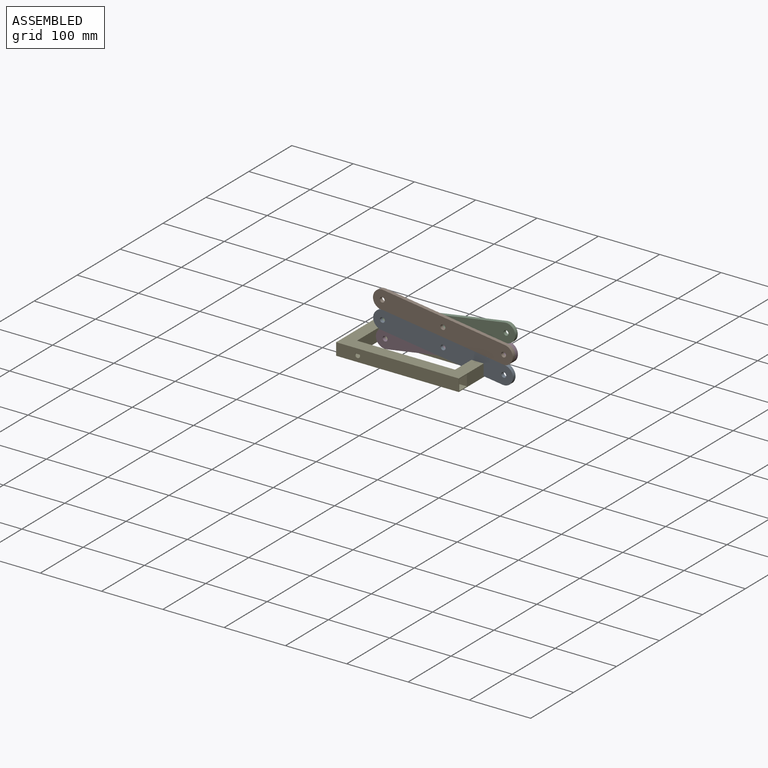
[diagram: assembled view]
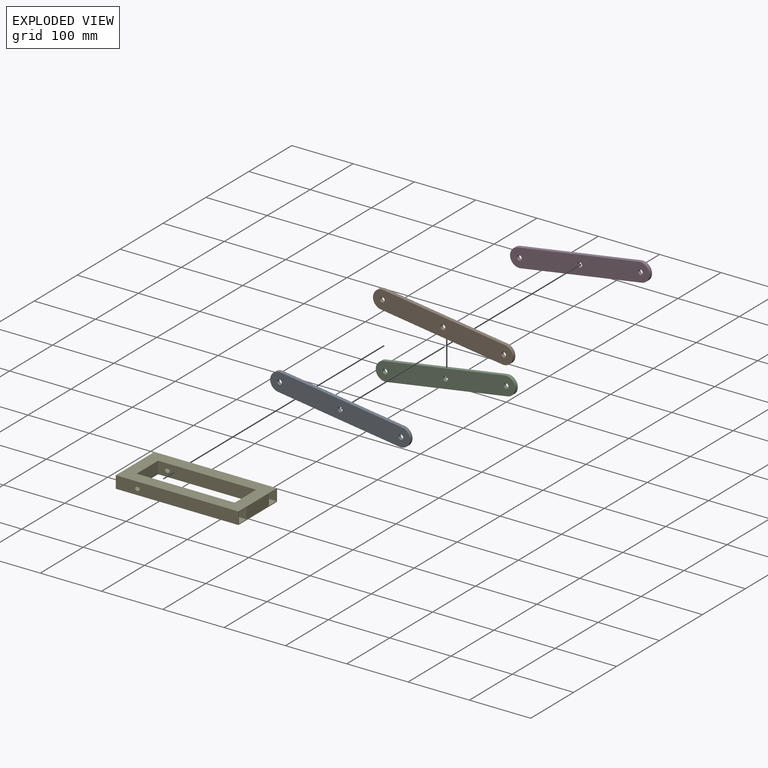
[diagram: exploded view]
GUIDED TOUR — MATED ASSEMBLY (Onshape document f0180cab8a7f78b1133b76b3, AutoMate assembly f0180cab8a7f78b1133b76b3_ec089f2cae63b6d1c7e616bc_10815a07de9a368d12c4ebc5_default)

This assembly has 5 components, labeled P0..P4 below (a component is one placed occurrence of a part; the same part can appear more than once), held together by 5 mates. A mate is a constraint between two components; its type names the relative motion it leaves free:
  REVOLUTE — leaves rotation about the listed axis free (a hinge).
Axis/direction vectors are unit vectors and 'through' points are millimeter coordinates, both in the assembly's world frame.

MATES
  1. REVOLUTE "Revolute 5": P1 <-> P2, axis (0.000, 1.000, 0.000) through (234.06, 152.56, 64.26) mm
  2. REVOLUTE "Revolute 4": P2 <-> P0, axis (0.000, -1.000, 0.000) through (135.31, 152.56, 48.47) mm
  3. REVOLUTE "Revolute 3": P1 <-> P3, axis (0.000, 1.000, 0.000) through (333.07, 152.56, 50.27) mm
  4. REVOLUTE "Revolute 1": P3 <-> P4, axis (0.000, 1.000, 0.000) through (135.58, 158.56, 18.69) mm
  5. REVOLUTE "Revolute 2": P0 <-> P3, axis (0.000, 1.000, 0.000) through (234.33, 152.56, 34.48) mm

ASSEMBLY ORDER
  1. P1 — the base component [order verified]
  2. P0 [order verified]
  3. P3 [order verified]
  4. P2 [order verified]
  5. P4 [order verified]
Order-tag legend:
  [order verified] — this step's position reverses a verified removal order: the component was checked to insert without passing through the ones already placed.

Of the 5 components, 5 carry the full construction recipe — the FeatureScript program that regenerates the part's solid from scratch; the rest are supplied as boundary geometry only.
Each toured component is shown spotlighted twice — in the assembled view, then in the exploded view, where a leader line traces a displaced component back to its assembled socket (saturated green if recipe-attached, orange if geometry-only; every other component desaturated gray) — followed by its recipe or geometry summary and the mates that hold it.
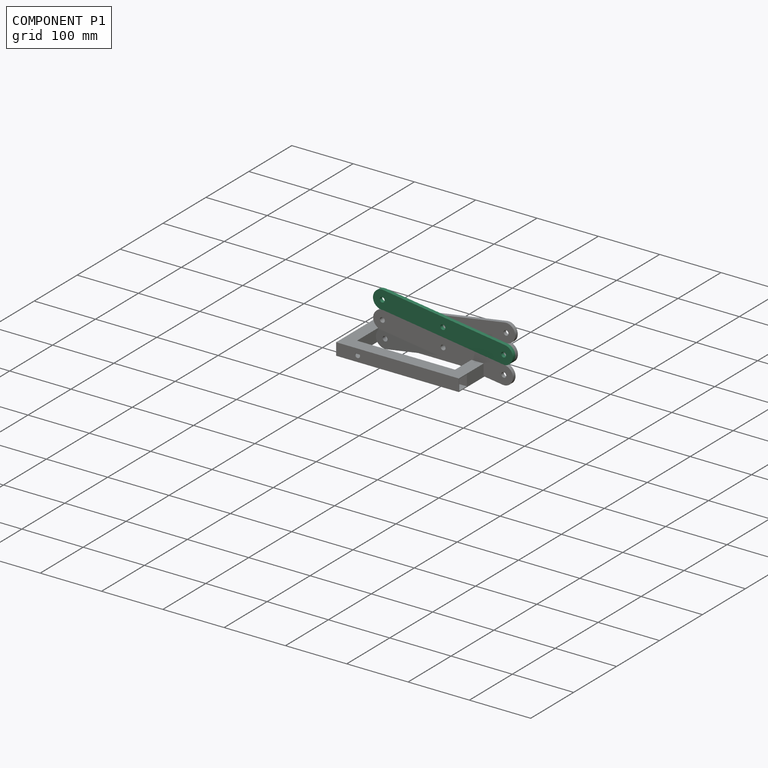
[diagram: component P1 — assembled]
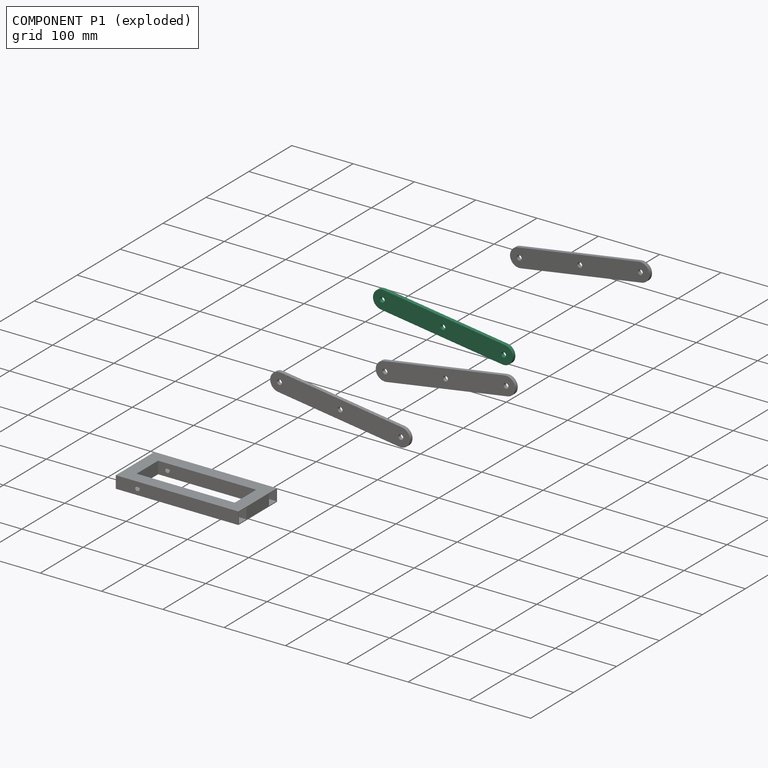
[diagram: component P1 — exploded]
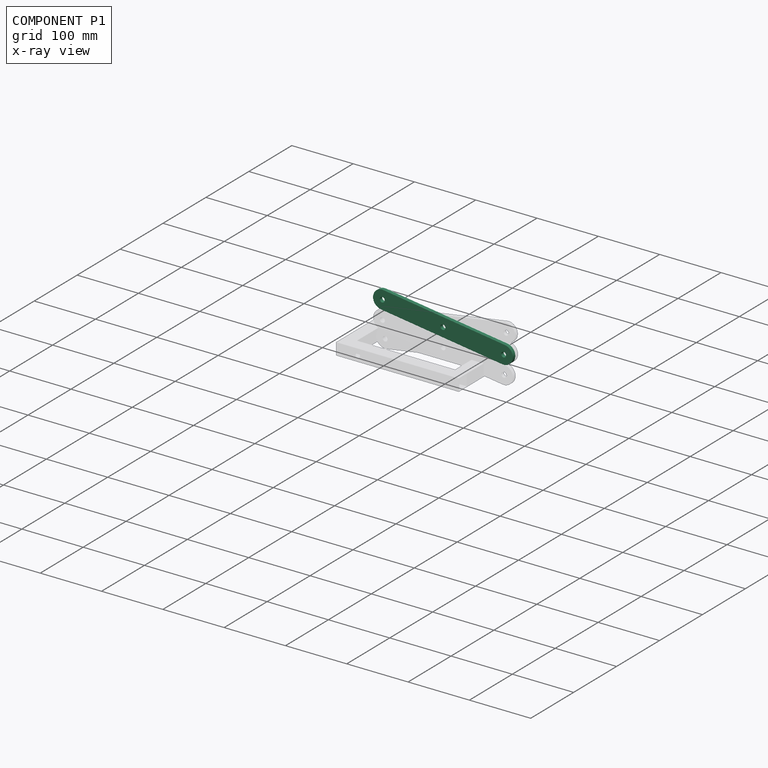
[diagram: component P1 — x-ray view]
COMPONENT P1 — same part as P0 (CADFS 00446103); its construction recipe is shown at P0.
Held by: REVOLUTE mate "Revolute 5" to P2; REVOLUTE mate "Revolute 3" to P3.
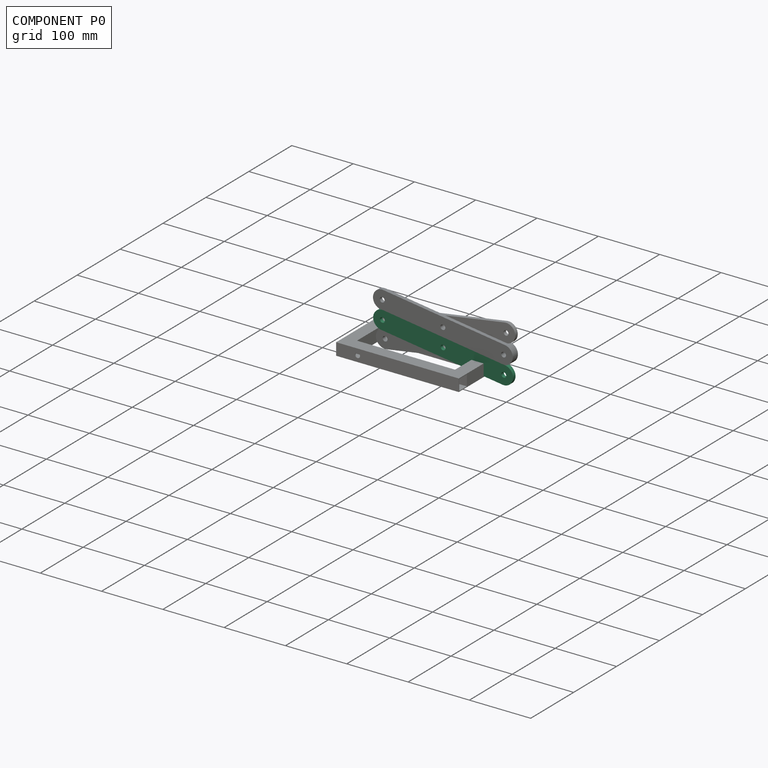
[diagram: component P0 — assembled]
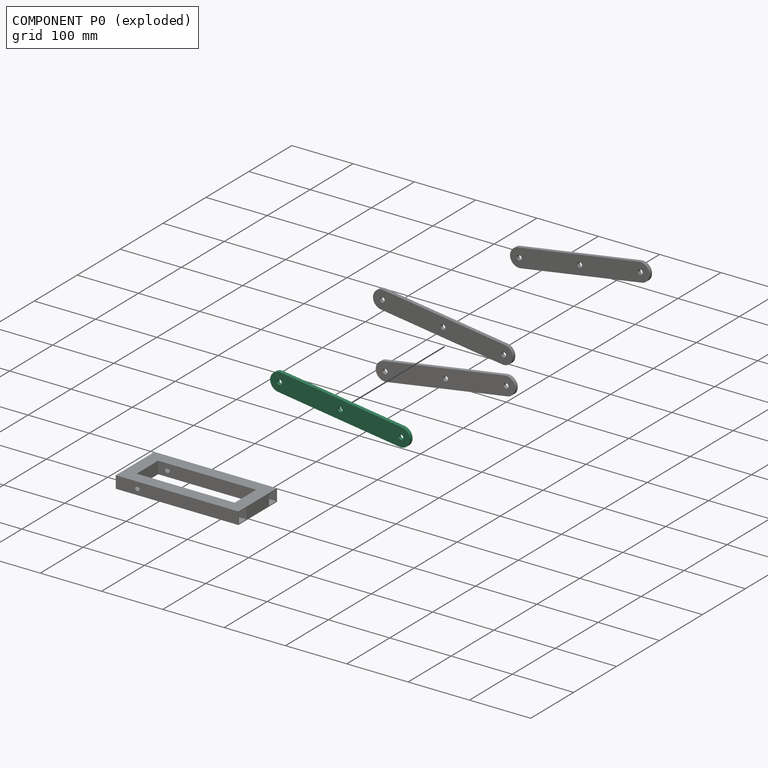
[diagram: component P0 — exploded]
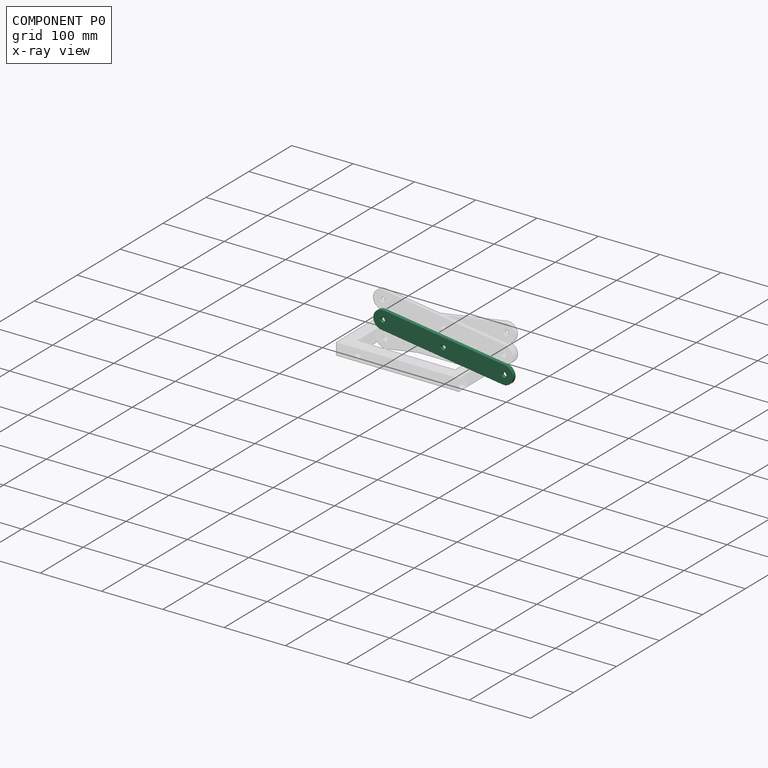
[diagram: component P0 — x-ray view]
COMPONENT P0 — recipe-attached (CADFS 00446103, mesh-verified: the recipe's output STEP matches this component's geometry to below the mesh-comparison resolution (tessellation chordal tolerance ~0.348 mm)).
Held by: REVOLUTE mate "Revolute 4" to P2; REVOLUTE mate "Revolute 2" to P3.
Construction recipe (FeatureScript — the CAD program that rebuilds this solid; sketch coordinates are in the units given by the * unit suffixes, e.g. mm):

FeatureScript 1511;
import(path : "onshape/std/geometry.fs", version : "1511.0");
import(path : "onshape/std/common.fs", version : "1511.0");
const mm = millimeter;
const VERTEX = EntityType.VERTEX;
const EDGE = EntityType.EDGE;
const FACE = EntityType.FACE;
const BODY = EntityType.BODY;
function v(x, y){return vector(x, y);}
function OD(order){return orderDisambiguation(order);}
function OSD(set){return originalSetDisambiguation(set);}
function TD(topology){return topologyDisambiguation(topology);}
function TDD(query){return trueDependencyDisambiguation(query);}
function sQuery(a, b, c) {return sketchEntityQuery(a, b, c);}

annotation { "Feature Type Name" : "Feature", "Feature Type Description" : "" }
export const myFeature = defineFeature(function(context is Context, id is Id, definition is map)
    precondition{}
    {
        {
            var Q0;
            Q0=qCreatedBy(makeId("Front.planeOp"),FACE);
            var sketch = newSketch(context, id + "F0", { "sketchPlane" : qUnion([Q0])});
            skLineSegment(sketch, "E0", {"start": v(0, 200) * mm, "end": v(0, 0) * mm});
            skLineSegment(sketch, "E1", {"start": v(30, 200) * mm, "end": v(30, 0) * mm});
            skArc(sketch, "E2", {"start": v(0, 200) * mm, "mid": v(15, 215) * mm, "end": v(30, 200) * mm});
            skArc(sketch, "E3", {"start": v(30, 0) * mm, "mid": v(15, -15) * mm, "end": v(0, 0) * mm});
            skCircle(sketch, "E4", {"center": v(15, 200) * mm, "radius": 4 * mm});
            skCircle(sketch, "E5", {"center": v(15, 0) * mm, "radius": 4 * mm});
            skCircle(sketch, "E6", {"center": v(15, 100) * mm, "radius": 4 * mm});
            skPoint(sketch, "E6.centerSnap0", {"position": v(0, 100) * mm});
            skLineSegment(sketch, "E7", {"start": v(0, 100) * mm, "end": v(30, 100) * mm, "construction": true});
            skSolve(sketch);
        }
        {
            var Q0;
            Q0 = qSketchRegion(id + "F0", true);
            extrude(context, id + "F1", {"entities" : qUnion([Q0]), "depth" : 6 * mm});
        }
    });
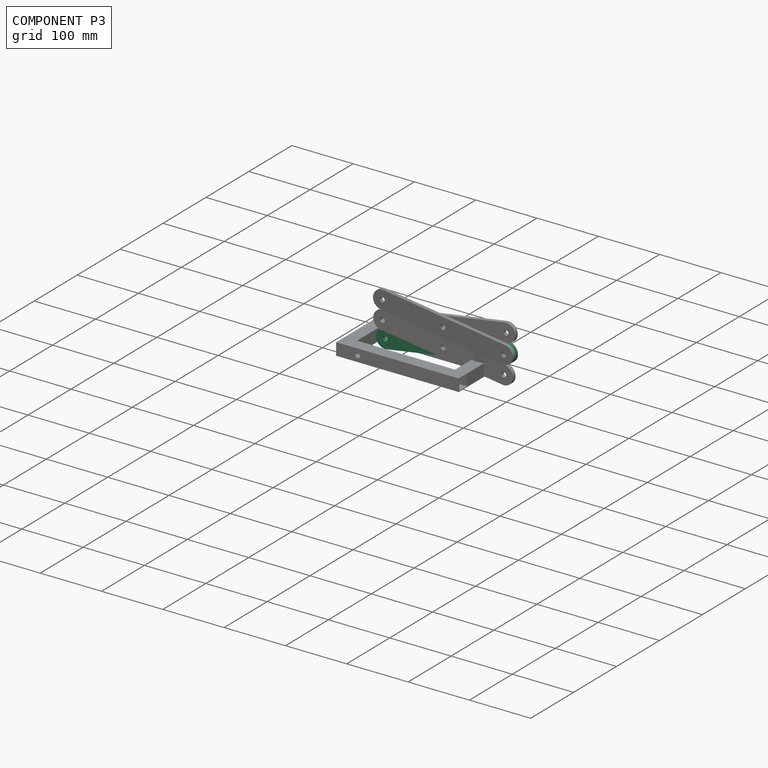
[diagram: component P3 — assembled]
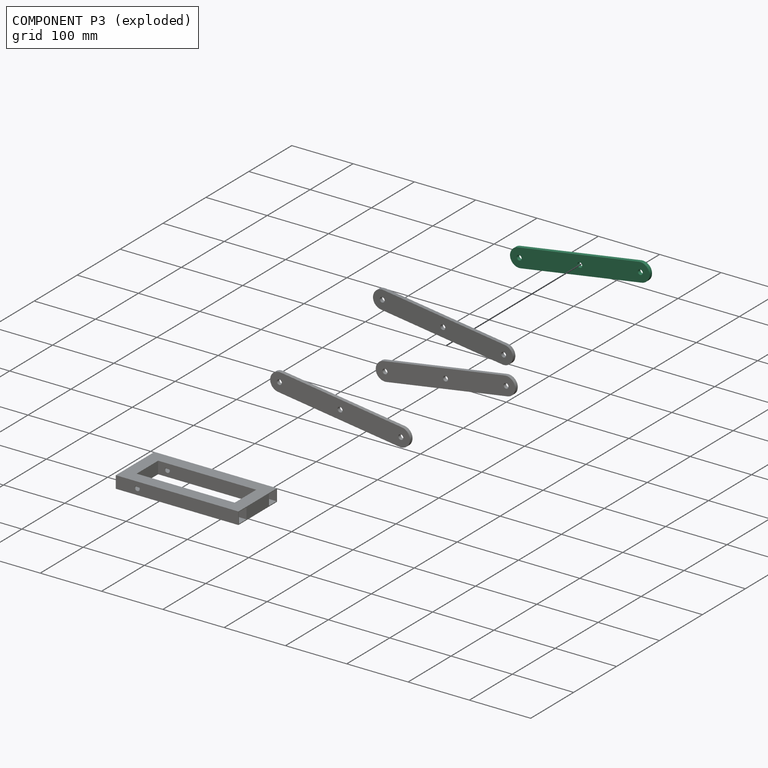
[diagram: component P3 — exploded]
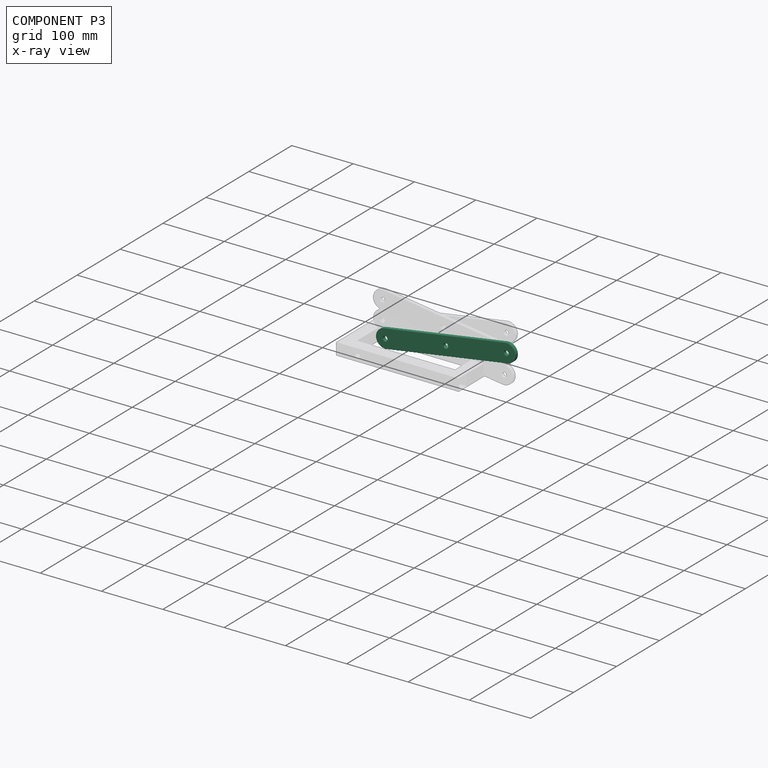
[diagram: component P3 — x-ray view]
COMPONENT P3 — same part as P0 (CADFS 00446103); its construction recipe is shown at P0.
Held by: REVOLUTE mate "Revolute 3" to P1; REVOLUTE mate "Revolute 1" to P4; REVOLUTE mate "Revolute 2" to P0.
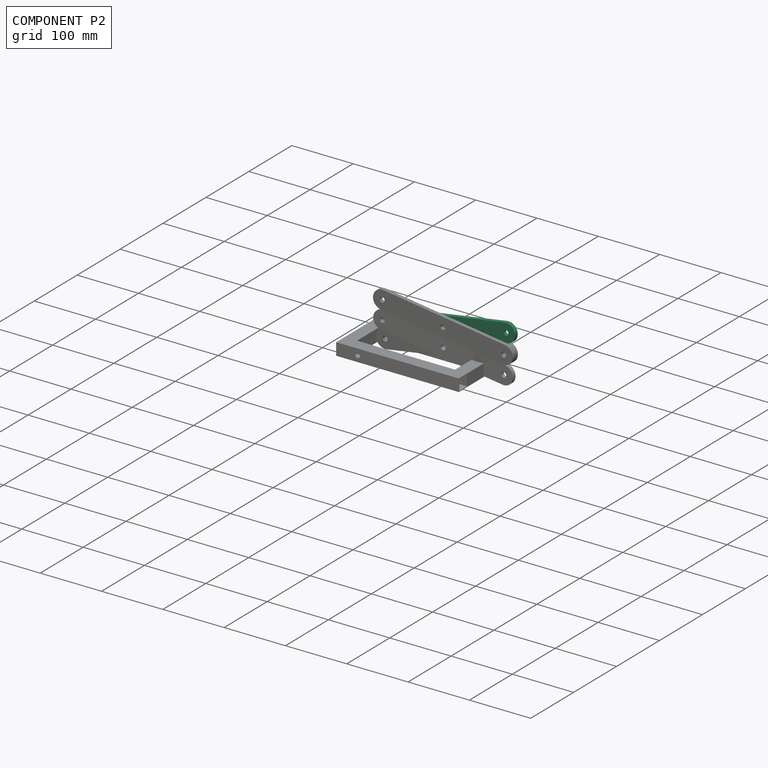
[diagram: component P2 — assembled]
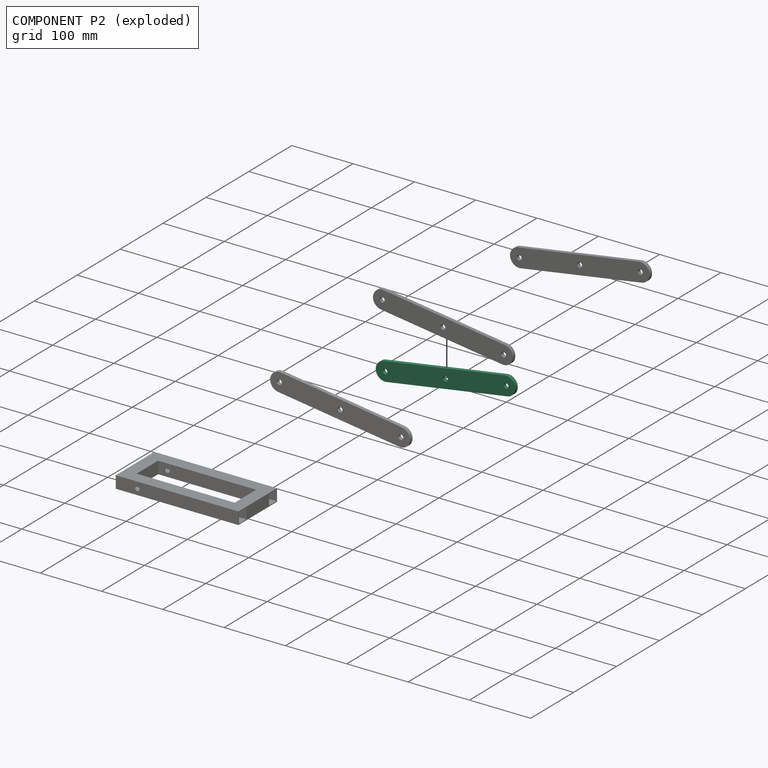
[diagram: component P2 — exploded]
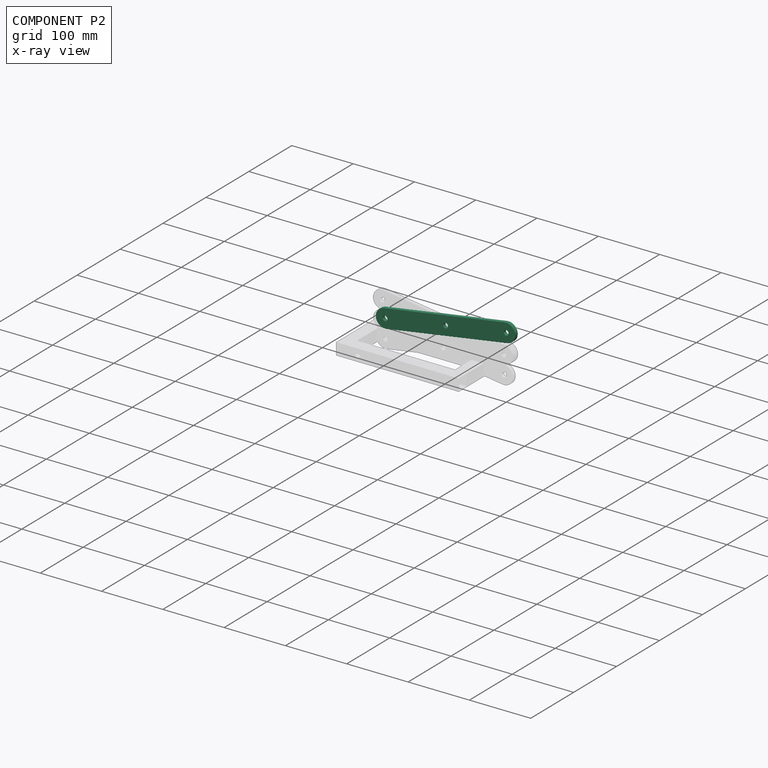
[diagram: component P2 — x-ray view]
COMPONENT P2 — same part as P0 (CADFS 00446103); its construction recipe is shown at P0.
Held by: REVOLUTE mate "Revolute 5" to P1; REVOLUTE mate "Revolute 4" to P0.
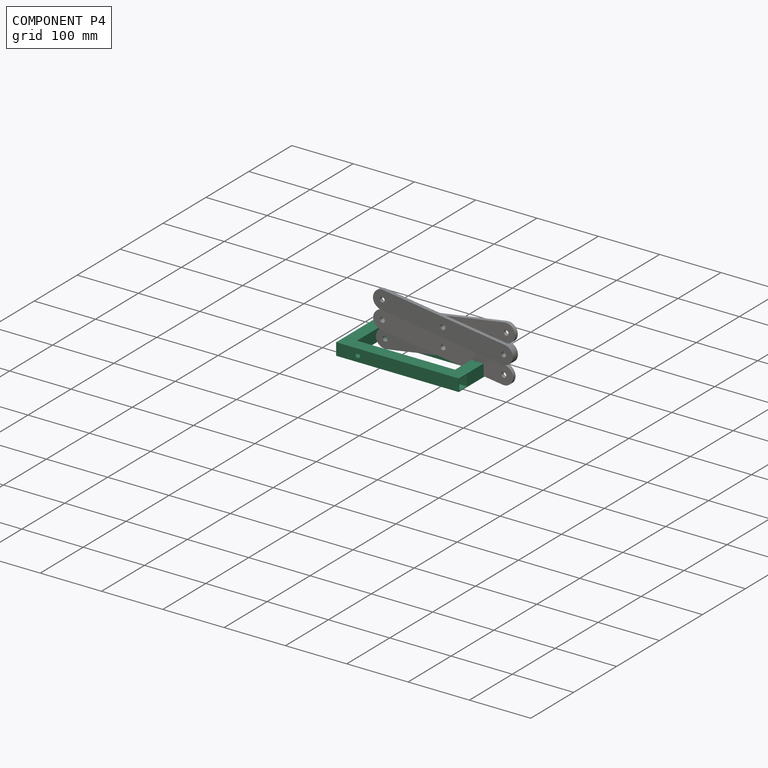
[diagram: component P4 — assembled]
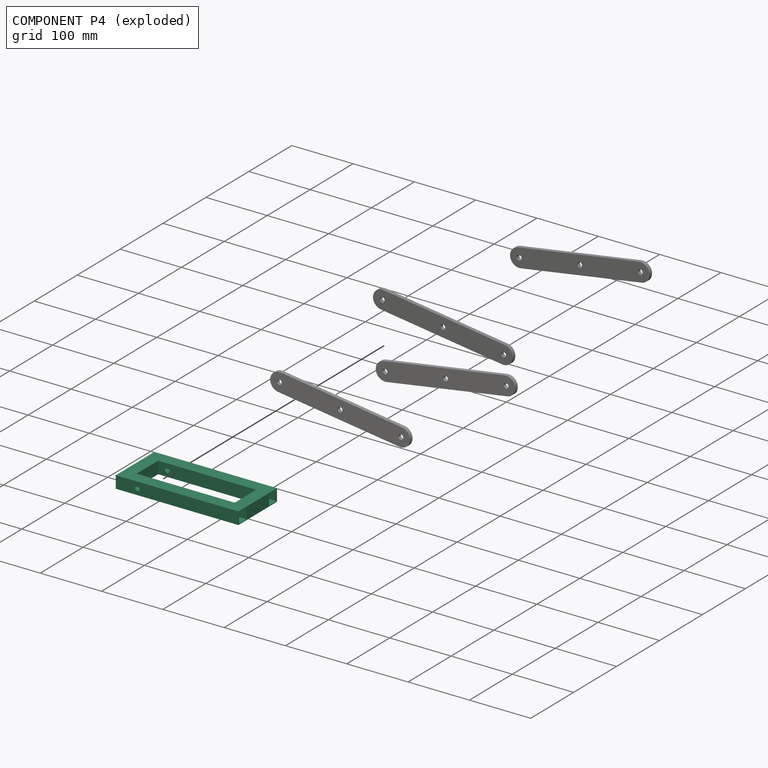
[diagram: component P4 — exploded]
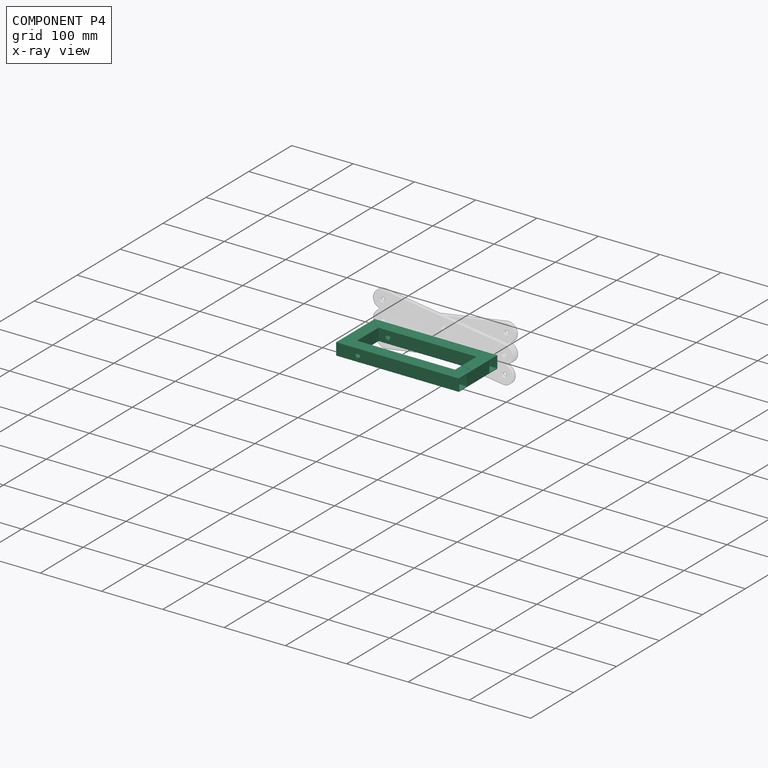
[diagram: component P4 — x-ray view]
COMPONENT P4 — recipe-attached (CADFS 00446102, mesh-verified: the recipe's output STEP matches this component's geometry to below the mesh-comparison resolution (tessellation chordal tolerance ~0.33 mm)).
Held by: REVOLUTE mate "Revolute 1" to P3.
Construction recipe (FeatureScript — the CAD program that rebuilds this solid; sketch coordinates are in the units given by the * unit suffixes, e.g. mm):

FeatureScript 1511;
import(path : "onshape/std/geometry.fs", version : "1511.0");
import(path : "onshape/std/common.fs", version : "1511.0");
const mm = millimeter;
const VERTEX = EntityType.VERTEX;
const EDGE = EntityType.EDGE;
const FACE = EntityType.FACE;
const BODY = EntityType.BODY;
function v(x, y){return vector(x, y);}
function OD(order){return orderDisambiguation(order);}
function OSD(set){return originalSetDisambiguation(set);}
function TD(topology){return topologyDisambiguation(topology);}
function TDD(query){return trueDependencyDisambiguation(query);}
function sQuery(a, b, c) {return sketchEntityQuery(a, b, c);}

annotation { "Feature Type Name" : "Feature", "Feature Type Description" : "" }
export const myFeature = defineFeature(function(context is Context, id is Id, definition is map)
    precondition{}
    {
        {
            var Q0;
            Q0=qCreatedBy(makeId("Right.planeOp"),FACE);
            var sketch = newSketch(context, id + "F0", { "sketchPlane" : qUnion([Q0])});
            skLineSegment(sketch, "E0.bottom", {"start": v(0, 0) * mm, "end": v(20, 0) * mm});
            skLineSegment(sketch, "E0.top", {"start": v(0, 20) * mm, "end": v(20, 20) * mm});
            skLineSegment(sketch, "E0.left", {"start": v(0, 0) * mm, "end": v(0, 20) * mm});
            skLineSegment(sketch, "E0.right", {"start": v(20, 0) * mm, "end": v(20, 20) * mm});
            skLineSegment(sketch, "E1.0", {"start": v(1.25, 18.75) * mm, "end": v(18.75, 18.75) * mm});
            skLineSegment(sketch, "E1.1", {"start": v(1.25, 1.25) * mm, "end": v(1.25, 18.75) * mm});
            skLineSegment(sketch, "E1.2", {"start": v(1.25, 1.25) * mm, "end": v(18.75, 1.25) * mm});
            skLineSegment(sketch, "E1.3", {"start": v(18.75, 1.25) * mm, "end": v(18.75, 18.75) * mm});
            skSolve(sketch);
        }
        {
            var Q0;
            Q0 = qSketchRegion(id + "F0", true);
            extrude(context, id + "F1", {"entities" : qUnion([Q0]), "depth" : 200 * mm});
        }
        {
            var Q0;
            Q0=makeQuery(id+"F1.opExtrude","SWEPT_FACE",FACE,{"disambiguationData":[OSD([sQuery(id+"F0.wireOp",EDGE,"E0.left")])]});
            var sketch = newSketch(context, id + "F2", { "sketchPlane" : qUnion([Q0])});
            skLineSegment(sketch, "E2.bottom", {"start": v(0, 0) * mm, "end": v(20, 0) * mm});
            skLineSegment(sketch, "E2.top", {"start": v(0, 20) * mm, "end": v(20, 20) * mm});
            skLineSegment(sketch, "E2.left", {"start": v(0, 0) * mm, "end": v(0, 20) * mm});
            skLineSegment(sketch, "E2.right", {"start": v(20, 0) * mm, "end": v(20, 20) * mm});
            skLineSegment(sketch, "E3.bottom", {"start": v(200, 0) * mm, "end": v(180, 0) * mm});
            skLineSegment(sketch, "E3.top", {"start": v(200, 20) * mm, "end": v(180, 20) * mm});
            skLineSegment(sketch, "E3.left", {"start": v(200, 0) * mm, "end": v(200, 20) * mm});
            skLineSegment(sketch, "E3.right", {"start": v(180, 0) * mm, "end": v(180, 20) * mm});
            skLineSegment(sketch, "E4.0", {"start": v(1.25, 18.75) * mm, "end": v(18.75, 18.75) * mm});
            skLineSegment(sketch, "E4.1", {"start": v(1.25, 1.25) * mm, "end": v(1.25, 18.75) * mm});
            skLineSegment(sketch, "E4.2", {"start": v(1.25, 1.25) * mm, "end": v(18.75, 1.25) * mm});
            skLineSegment(sketch, "E4.3", {"start": v(18.75, 1.25) * mm, "end": v(18.75, 18.75) * mm});
            skLineSegment(sketch, "E5.0", {"start": v(198.75, 18.75) * mm, "end": v(181.25, 18.75) * mm});
            skLineSegment(sketch, "E5.1", {"start": v(198.75, 1.25) * mm, "end": v(198.75, 18.75) * mm});
            skLineSegment(sketch, "E5.2", {"start": v(198.75, 1.25) * mm, "end": v(181.25, 1.25) * mm});
            skLineSegment(sketch, "E5.3", {"start": v(181.25, 1.25) * mm, "end": v(181.25, 18.75) * mm});
            skSolve(sketch);
        }
        {
            var Q0;
            Q0 = qSketchRegion(id + "F2", true);
            extrude(context, id + "F3", {"entities" : qUnion([Q0]), "operationType" : NewBodyOperationType.ADD, "depth" : 50 * mm});
        }
        {
            var Q0;
            Q0=makeQuery(id+"F3.boolean.opBoolean","SPLIT",FACE,{"disambiguationData":[TD([makeQuery(id+"F1.opExtrude","SWEPT_FACE",FACE,{"disambiguationData":[OSD([sQuery(id+"F0.wireOp",EDGE,"E0.bottom")])]})])],"derivedFrom":makeQuery(id+"F1.opExtrude","SWEPT_FACE",FACE,{"disambiguationData":[OSD([sQuery(id+"F0.wireOp",EDGE,"E0.left")])]})});
            var sketch = newSketch(context, id + "F4", { "sketchPlane" : qUnion([Q0])});
            skLineSegment(sketch, "E6", {"start": v(20, 10) * mm, "end": v(180, 10) * mm, "construction": true});
            skCircle(sketch, "E7", {"center": v(35, 10) * mm, "radius": 4 * mm});
            skSolve(sketch);
        }
        {
            var Q0;
            Q0 = qSketchRegion(id + "F4", true);
            extrude(context, id + "F5", {"entities" : qUnion([Q0]), "operationType" : NewBodyOperationType.REMOVE, "endBound" : BoundingType.THROUGH_ALL, "oppositeDirection" : true, "depth" : 25 * mm});
        }
        {
            var Q0;
            Q0=makeQuery(id+"F3.opExtrude","SWEPT_EDGE",EDGE,{"disambiguationData":[OSD([sQuery(id+"F0.wireOp",EDGE,"E0.top"),sQuery(id+"F0.wireOp",EDGE,"E0.left"),sQuery(id+"F2.wireOp",EDGE,"E3.top"),sQuery(id+"F2.wireOp",EDGE,"E3.right")])]});
            cPoint(context, id + "F6", {"entities" : qUnion([Q0]), "parameter" : 0.5});
        }
        {
            var Q0;
            Q0=qCreatedBy(makeId("Front.planeOp"),FACE);
            var Q1;
            Q1 = qCreatedBy(id + "F6" ,VERTEX);
            cPlane(context, id + "F7", {"entities" : qUnion([Q0, Q1]), "cplaneType" : CPlaneType.PLANE_POINT, "offset" : 25 * mm, "width" : 150 * mm, "height" : 150 * mm});
        }
        {
            var Q0;
            Q0=makeQuery(id+"F1.opExtrude","SWEPT_BODY",BODY,{"disambiguationData":[OSD([sQuery(id+"F0.wireOp",EDGE,"E0.bottom"),sQuery(id+"F0.wireOp",EDGE,"E0.top"),sQuery(id+"F0.wireOp",EDGE,"E0.left"),sQuery(id+"F0.wireOp",EDGE,"E0.right"),sQuery(id+"F0.wireOp",EDGE,"E1.0"),sQuery(id+"F0.wireOp",EDGE,"E1.1"),sQuery(id+"F0.wireOp",EDGE,"E1.2"),sQuery(id+"F0.wireOp",EDGE,"E1.3")])]});
            var Q1;
            Q1=qCreatedBy(id+"F7.planeOp",FACE);
            mirror(context, id + "F8", {"operationType" : NewBodyOperationType.ADD, "entities" : qUnion([Q0]), "mirrorPlane" : qUnion([Q1])});
        }
    });
PROVENANCE & LICENSES
Assembly (occurrences, transforms, mates, per-part STEP geometry): AutoMate dataset, Zenodo record 7776208, CC0.
Construction recipes: CADFS (HuggingFace VladPyatov/CADFS, CC-BY-4.0, layered over the ABC dataset), FeatureScript reconstruction programs keyed by ABC model id.
Join: ABC meta listings map ABC model id -> Onshape documentId; within a shared document, parts are matched by geometric signature (bounding-box dims + volume at 0.1% relative tolerance, exact B-rep face/solid counts).
Verification: 5 of this assembly's 5 components carry a recipe attachment, and every attachment is mesh-verified: the CADFS STEP and the AutoMate member STEP were compared as meshes in their shared local frame (symmetric sampled-point-to-mesh distance); worst across the 5 attachments: below the mesh-comparison resolution (tessellation chordal tolerance ~0.348 mm) on a 232 mm part.
Renders: orthographic iso camera (az 35 / el 25); the floor grid conveys scale (grid pitch printed in each image; no ruler). In the exploded view each component is displaced by its stored offset vector: the offsets alone carry the explosion direction (mate normal/axis signs are not orientation cues and do not encode it), and separation distances are assigned per mate-chain, not proportionally to assembly-order depth.
